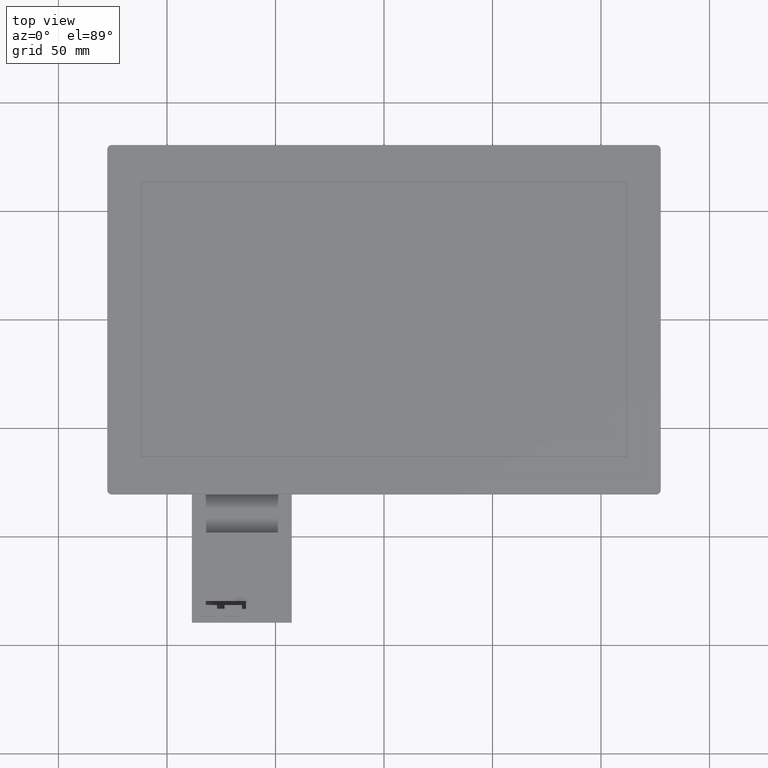
[diagram: clean part render]
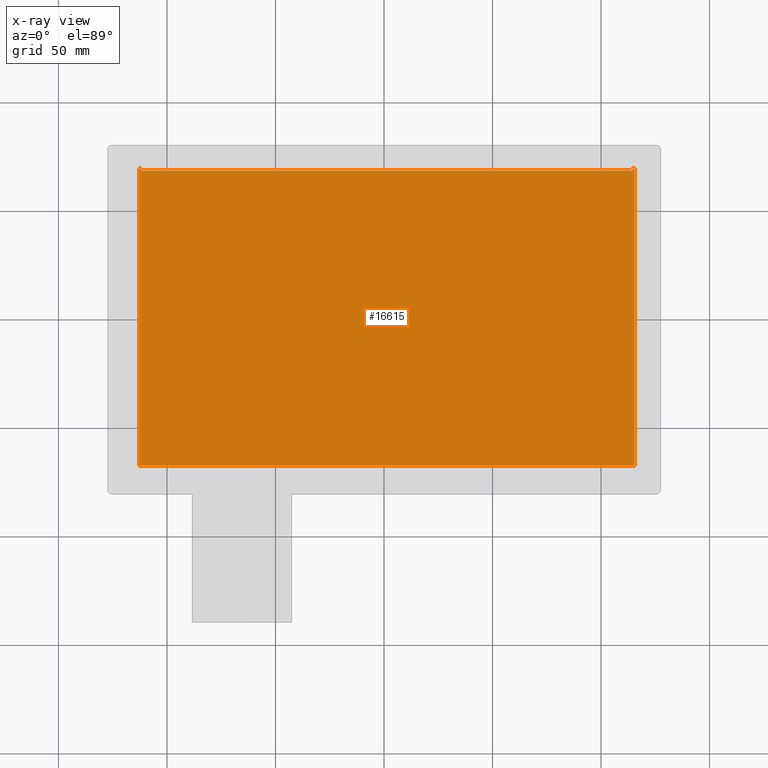
[diagram: x-ray — body ghosted, one internal face saturated and labeled with its STEP entity id]
A machine part, top view, then the same camera in x-ray: the body is ghosted and one INTERNAL B-rep face — a face not visible from any outside direction — is saturated and labeled: STEP entity #16615.
In plain terms, the highlighted planar face has unit normal (-0, -0.001, 1).
Its self-contained STEP definition (entity closure, byte-faithful):
#638=PLANE('',#17719);
#1481=FACE_OUTER_BOUND('',#2401,.T.);
#2401=EDGE_LOOP('',(#14597,#14598,#14599,#14600,#14601,#14602,#14603,#14604,
#14605,#14606,#14607,#14608));
#3395=LINE('',#24339,#5516);
#3411=LINE('',#24372,#5532);
#3971=LINE('',#25645,#6092);
#3978=LINE('',#25660,#6099);
#4240=LINE('',#26271,#6361);
#4241=LINE('',#26273,#6362);
#4242=LINE('',#26275,#6363);
#4243=LINE('',#26277,#6364);
#4244=LINE('',#26279,#6365);
#4245=LINE('',#26281,#6366);
#4246=LINE('',#26282,#6367);
#4247=LINE('',#26283,#6368);
#5516=VECTOR('',#19507,10.);
#5532=VECTOR('',#19529,10.);
#6092=VECTOR('',#20671,10.);
#6099=VECTOR('',#20692,10.);
#6361=VECTOR('',#21212,10.);
#6362=VECTOR('',#21213,10.);
#6363=VECTOR('',#21214,10.);
#6364=VECTOR('',#21215,10.);
#6365=VECTOR('',#21216,10.);
#6366=VECTOR('',#21217,10.);
#6367=VECTOR('',#21218,10.);
#6368=VECTOR('',#21219,10.);
#7750=VERTEX_POINT('',#24337);
#7751=VERTEX_POINT('',#24338);
#7765=VERTEX_POINT('',#24370);
#8185=VERTEX_POINT('',#25639);
#8187=VERTEX_POINT('',#25643);
#8188=VERTEX_POINT('',#25659);
#8364=VERTEX_POINT('',#26270);
#8365=VERTEX_POINT('',#26272);
#8366=VERTEX_POINT('',#26274);
#8367=VERTEX_POINT('',#26276);
#8368=VERTEX_POINT('',#26278);
#8369=VERTEX_POINT('',#26280);
#9578=EDGE_CURVE('',#7750,#7751,#3395,.T.);
#9595=EDGE_CURVE('',#7751,#7765,#3411,.T.);
#10234=EDGE_CURVE('',#8185,#8187,#3971,.T.);
#10241=EDGE_CURVE('',#8187,#8188,#3978,.T.);
#10525=EDGE_CURVE('',#8364,#8188,#4240,.T.);
#10526=EDGE_CURVE('',#8365,#8364,#4241,.T.);
#10527=EDGE_CURVE('',#8365,#8366,#4242,.T.);
#10528=EDGE_CURVE('',#8366,#8367,#4243,.T.);
#10529=EDGE_CURVE('',#8368,#8367,#4244,.T.);
#10530=EDGE_CURVE('',#8368,#8369,#4245,.T.);
#10531=EDGE_CURVE('',#8369,#7750,#4246,.T.);
#10532=EDGE_CURVE('',#8185,#7765,#4247,.T.);
#14597=ORIENTED_EDGE('',*,*,#10234,.T.);
#14598=ORIENTED_EDGE('',*,*,#10241,.T.);
#14599=ORIENTED_EDGE('',*,*,#10525,.F.);
#14600=ORIENTED_EDGE('',*,*,#10526,.F.);
#14601=ORIENTED_EDGE('',*,*,#10527,.T.);
#14602=ORIENTED_EDGE('',*,*,#10528,.T.);
#14603=ORIENTED_EDGE('',*,*,#10529,.F.);
#14604=ORIENTED_EDGE('',*,*,#10530,.T.);
#14605=ORIENTED_EDGE('',*,*,#10531,.T.);
#14606=ORIENTED_EDGE('',*,*,#9578,.T.);
#14607=ORIENTED_EDGE('',*,*,#9595,.T.);
#14608=ORIENTED_EDGE('',*,*,#10532,.F.);
#16615=ADVANCED_FACE('',(#1481),#638,.T.);
#17719=AXIS2_PLACEMENT_3D('',#26269,#21210,#21211);
#19507=DIRECTION('',(-4.43963163433723E-16,-0.999999469350118,-0.00103019390549999));
#19529=DIRECTION('',(-1.,7.78076468053256E-15,-1.14565176328928E-16));
#20671=DIRECTION('',(1.,-1.28756546955889E-14,1.09316448900988E-16));
#20692=DIRECTION('',(-4.43963163433723E-16,-0.999999469350118,-0.00103019390549999));
#21210=DIRECTION('center_axis',(-1.22580811888945E-16,-0.00103019390549999,
0.999999469350118));
#21211=DIRECTION('ref_axis',(1.,-4.44089209850062E-16,1.22123378696216E-16));
#21212=DIRECTION('',(-1.,4.44089209850062E-16,-1.22123378696216E-16));
#21213=DIRECTION('',(-4.43963163433723E-16,-0.999999469350118,-0.00103019390549999));
#21214=DIRECTION('',(-1.,4.44089209850062E-16,-1.22123378696216E-16));
#21215=DIRECTION('',(-4.43963163433724E-16,-0.999999469350118,-0.00103019390549876));
#21216=DIRECTION('',(1.,-4.44089209850062E-16,1.22123378696216E-16));
#21217=DIRECTION('',(4.43963163433723E-16,0.999999469350118,0.00103019390550346));
#21218=DIRECTION('',(-1.,-9.03869253856519E-13,-5.1135496908818E-15));
#21219=DIRECTION('',(4.43963163433723E-16,0.999999469350118,0.00103019390549999));
#24337=CARTESIAN_POINT('',(-112.96,69.5799076261886,-4.45899687066609));
#24338=CARTESIAN_POINT('',(-112.96,-4.63999999999343,-4.53545780774335));
#24339=CARTESIAN_POINT('',(-112.96,-30.2362448098017,-4.56182691714286));
#24370=CARTESIAN_POINT('',(-113.,-4.63999999999344,-4.53545780774335));
#24372=CARTESIAN_POINT('',(5.21280717412721,-4.63999999999436,-4.53545780774334));
#25639=CARTESIAN_POINT('',(-113.,-20.2399999999934,-4.55152884119724));
#25643=CARTESIAN_POINT('',(-112.96,-20.2399999999934,-4.55152884119724));
#25645=CARTESIAN_POINT('',(2.4966319999986,-20.2399999999949,-4.55152884119723));
#25659=CARTESIAN_POINT('',(-112.96,-67.2860593727256,-4.59999543055961));
#25660=CARTESIAN_POINT('',(-112.96,-30.2362448098017,-4.56182691714286));
#26269=CARTESIAN_POINT('Origin',(118.173264,2.01340218502311,-4.52860350972424));
#26270=CARTESIAN_POINT('',(115.5,-67.2860593727257,-4.59999543055958));
#26271=CARTESIAN_POINT('',(115.5,-67.2860593727257,-4.59999543055958));
#26272=CARTESIAN_POINT('',(115.5,69.5799076261885,-4.45899687066607));
#26273=CARTESIAN_POINT('',(115.5,69.5799076261885,-4.45899687066607));
#26274=CARTESIAN_POINT('',(114.5,69.5799076261885,-4.45899687066607));
#26275=CARTESIAN_POINT('',(115.5,69.5799076261885,-4.45899687066607));
#26276=CARTESIAN_POINT('',(114.5,68.6299081303063,-4.45997555487629));
#26277=CARTESIAN_POINT('',(114.5,69.5799076261885,-4.45899687066607));
#26278=CARTESIAN_POINT('',(-111.9,68.6299081303064,-4.45997555487632));
#26279=CARTESIAN_POINT('',(-111.9,68.6299081303064,-4.45997555487632));
#26280=CARTESIAN_POINT('',(-111.9,69.5799076261896,-4.45899687066609));
#26281=CARTESIAN_POINT('',(-111.9,68.6299081303064,-4.45997555487632));
#26282=CARTESIAN_POINT('',(-111.9,69.5799076261896,-4.45899687066609));
#26283=CARTESIAN_POINT('',(-113.,-67.2860593727256,-4.59999543055961));